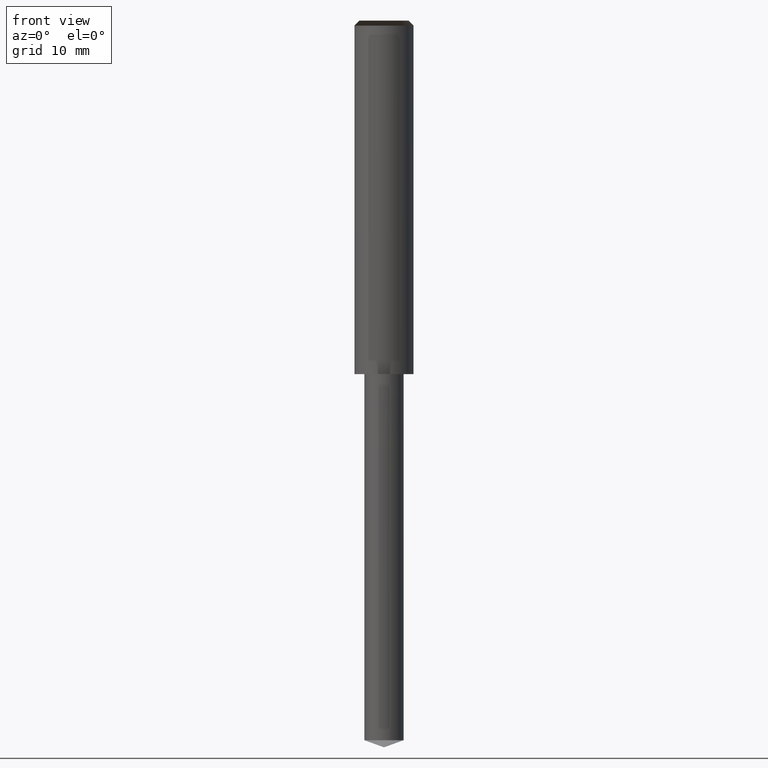
[diagram: clean part render]
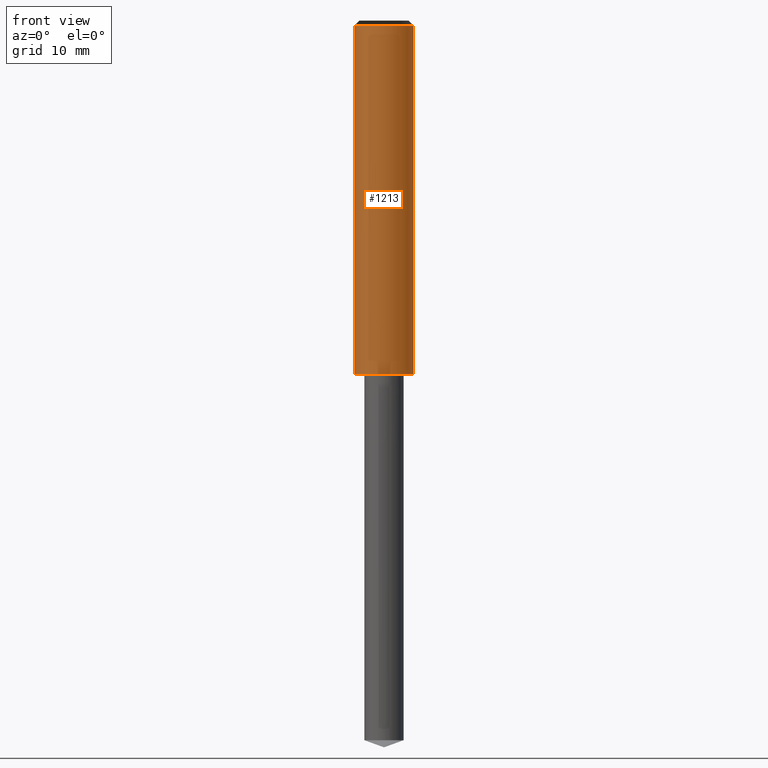
[diagram: same view with one face highlighted and labeled with its STEP entity id]
A machine part, front view. The second image highlights one B-rep face of the part: STEP entity #1213.
In plain terms, the highlighted face is a freeform B-spline surface patch.
Its self-contained STEP definition (entity closure, byte-faithful):
#842=CARTESIAN_POINT('',(3.0,0.0,0.0));
#846=CARTESIAN_POINT('',(-3.0,0.0,0.0));
#847=CARTESIAN_POINT('',(3.0,0.0,35.5));
#851=CARTESIAN_POINT('',(-3.0,0.0,35.5));
#864=CARTESIAN_POINT('',(-3.0,-3.0,0.0));
#865=CARTESIAN_POINT('',(0.0,-3.0,0.0));
#866=CARTESIAN_POINT('',(3.0,-3.0,0.0));
#867=CARTESIAN_POINT('',(-3.0,-3.0,35.5));
#868=CARTESIAN_POINT('',(0.0,-3.0,35.5));
#869=CARTESIAN_POINT('',(3.0,-3.0,35.5));
#1194=(
BOUNDED_SURFACE()
B_SPLINE_SURFACE(1,2,(
(#846,#864,#865,#866,#842),
(#851,#867,#868,#869,#847)
), .UNSPECIFIED.,.F.,.F.,.F.)
B_SPLINE_SURFACE_WITH_KNOTS((2,2),(3,2,3),(
0.0,1.0),(
0.0,0.5,1.0), .UNSPECIFIED.)
GEOMETRIC_REPRESENTATION_ITEM()
RATIONAL_B_SPLINE_SURFACE(((1.0,0.707106781187,1.0,0.707106781187,1.0),
(1.0,0.707106781187,1.0,0.707106781187,1.0)
))
REPRESENTATION_ITEM('')
SURFACE()
);
#1195=(
BOUNDED_CURVE()
B_SPLINE_CURVE(2,(#842,#866,#865,#864,#846),.UNSPECIFIED.,.F.,.F.)
B_SPLINE_CURVE_WITH_KNOTS((3,2,3),
(0.0,0.5,1.0),.UNSPECIFIED.)
CURVE()
GEOMETRIC_REPRESENTATION_ITEM()
RATIONAL_B_SPLINE_CURVE((1.0,0.707106781187,1.0,0.707106781187,1.0))
REPRESENTATION_ITEM('')
);
#1196=(
BOUNDED_CURVE()
B_SPLINE_CURVE(1,(#846,#851),.UNSPECIFIED.,.F.,.F.)
B_SPLINE_CURVE_WITH_KNOTS((2,2),
(0.0,1.0),.UNSPECIFIED.)
CURVE()
GEOMETRIC_REPRESENTATION_ITEM()
RATIONAL_B_SPLINE_CURVE((1.0,1.0))
REPRESENTATION_ITEM('')
);
#1197=(
BOUNDED_CURVE()
B_SPLINE_CURVE(2,(#851,#867,#868,#869,#847),.UNSPECIFIED.,.F.,.F.)
B_SPLINE_CURVE_WITH_KNOTS((3,2,3),
(0.0,0.5,1.0),.UNSPECIFIED.)
CURVE()
GEOMETRIC_REPRESENTATION_ITEM()
RATIONAL_B_SPLINE_CURVE((1.0,0.707106781187,1.0,0.707106781187,1.0))
REPRESENTATION_ITEM('')
);
#1198=(
BOUNDED_CURVE()
B_SPLINE_CURVE(1,(#847,#842),.UNSPECIFIED.,.F.,.F.)
B_SPLINE_CURVE_WITH_KNOTS((2,2),
(0.0,1.0),.UNSPECIFIED.)
CURVE()
GEOMETRIC_REPRESENTATION_ITEM()
RATIONAL_B_SPLINE_CURVE((1.0,1.0))
REPRESENTATION_ITEM('')
);
#1199=VERTEX_POINT('',#842);
#1200=VERTEX_POINT('',#846);
#1201=VERTEX_POINT('',#847);
#1202=VERTEX_POINT('',#851);
#1203=EDGE_CURVE('',#1199,#1200,#1195,.T.);
#1204=EDGE_CURVE('',#1200,#1202,#1196,.T.);
#1205=EDGE_CURVE('',#1202,#1201,#1197,.T.);
#1206=EDGE_CURVE('',#1201,#1199,#1198,.T.);
#1207=ORIENTED_EDGE('',*,*,#1203,.T.);
#1208=ORIENTED_EDGE('',*,*,#1204,.T.);
#1209=ORIENTED_EDGE('',*,*,#1205,.T.);
#1210=ORIENTED_EDGE('',*,*,#1206,.T.);
#1211=EDGE_LOOP('',(#1207,#1208,#1209,#1210));
#1212=FACE_OUTER_BOUND('',#1211,.T.);
#1213=ADVANCED_FACE('',(#1212),#1194,.T.);